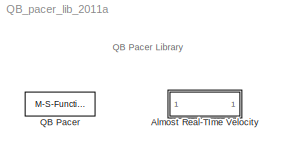
MODEL QB_pacer_lib_2011a
KIND library
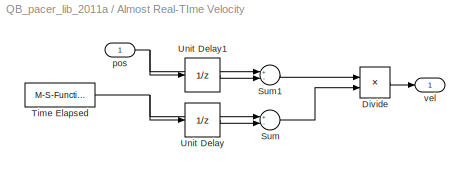
BLOCK [SubSystem] Almost Real-TIme Velocity
  FunctionWithSeparateData = off
  MaskDescription = Uses Real-Time Pacer to compute an almost real-time velocity.\n\nPOS = position to use as reference\nVEL = velocity (pos unit/second)
  MaskHideContents = off
  MaskIconFrame = on
  MaskIconOpaque = on
  MaskIconRotate = none
  MaskIconUnits = autoscale
  MaskPortRotate = default
  MaskType = Almost Real-Time Velocity
  MinAlgLoopOccurrences = off
  Opaque = off
  Ports = [1, 1]
  PropExecContextOutsideSubsystem = off
  RTWSystemCode = Auto
  RequestExecContextInheritance = off
  SID = 5
  Variant = off
BLOCK [Product] Almost Real-TIme Velocity/Divide
  InputSameDT = off
  Inputs = */
  OutDataTypeStr = Inherit: Inherit via internal rule
  Ports = [2, 1]
  RndMeth = Floor
  SID = 7
  SaturateOnIntegerOverflow = off
BLOCK [Sum] Almost Real-TIme Velocity/Sum
  IconShape = round
  InputSameDT = off
  Inputs = +-|
  OutDataTypeStr = Inherit: Inherit via internal rule
  Ports = [2, 1]
  SID = 8
  SaturateOnIntegerOverflow = off
BLOCK [Sum] Almost Real-TIme Velocity/Sum1
  IconShape = round
  InputSameDT = off
  Inputs = +-|
  OutDataTypeStr = Inherit: Inherit via internal rule
  Ports = [2, 1]
  SID = 9
  SaturateOnIntegerOverflow = off
BLOCK [M-S-Function] Almost Real-TIme Velocity/Time Elapsed
  AncestorBlock = realtime_pacer_lib/Real-Time Pacer
  FunctionName = msfun_realtime_elapsed
  MaskDisplay = port_label('output',1,'time');
  MaskIconFrame = on
  MaskIconOpaque = on
  MaskIconRotate = none
  MaskIconUnits = normalized
  MaskPortRotate = default
  MaskType = Time Elapsed
  Ports = [0, 1]
  SID = 10
BLOCK [UnitDelay] Almost Real-TIme Velocity/Unit Delay
  InputProcessing = Elements as channels (sample based)
  SID = 11
  SampleTime = -1
BLOCK [UnitDelay] Almost Real-TIme Velocity/Unit Delay1
  InputProcessing = Elements as channels (sample based)
  SID = 12
  SampleTime = -1
BLOCK [Inport] Almost Real-TIme Velocity/pos
  IconDisplay = Port number
  SID = 6
BLOCK [Outport] Almost Real-TIme Velocity/vel
  IconDisplay = Port number
  SID = 13
BLOCK [M-S-Function] QB Pacer
  AncestorBlock = realtime_pacer_lib/Real-Time Pacer
  FunctionName = msfun_realtime_pacer
  MaskDescription = Slow down a simulation to track real (i.e., wall clock) elapsed time. \n\n\"Speedup\" specifies the ratio between simulation time and real time \n Speedup = N => N sec. of simulation time per sec. of real time\n Speedup can be fractional (e.g., 0.5, 1.3). \n Speedup = inf => allow simulation to run at full speed\n\nClick on the Help button for details.\n
  MaskDisplay = %fprintf('QB Pacer\\nSpeedup = %g', simTimePerRealTime)\nport_label('output',1,'time');
  MaskEnableString = on
  MaskHelp = web('realtime_pacer_help.html', '-helpbrowser')
  MaskIconFrame = on
  MaskIconOpaque = on
  MaskIconRotate = none
  MaskIconUnits = normalized
  MaskPortRotate = default
  MaskPromptString = Speedup (Simulation Time / Real Time):
  MaskStyleString = edit
  MaskToolTipString = on
  MaskTunableValueString = on
  MaskType = RealTime_Pacer
  MaskValueString = 1
  MaskVariables = simTimePerRealTime=@1;
  MaskVisibilityString = on
  Parameters = simTimePerRealTime
  Ports = [0, 1]
  SID = 4
ANNOTATION (root): QB Pacer Library
LINE Almost Real-TIme Velocity/Divide:1 -> Almost Real-TIme Velocity/vel:1
LINE Almost Real-TIme Velocity/Sum1:1 -> Almost Real-TIme Velocity/Divide:1
LINE Almost Real-TIme Velocity/Sum:1 -> Almost Real-TIme Velocity/Divide:2
NET Almost Real-TIme Velocity/Time Elapsed:1 -> Almost Real-TIme Velocity/Sum:1, Almost Real-TIme Velocity/Unit Delay:1
LINE Almost Real-TIme Velocity/Unit Delay1:1 -> Almost Real-TIme Velocity/Sum1:2
LINE Almost Real-TIme Velocity/Unit Delay:1 -> Almost Real-TIme Velocity/Sum:2
NET Almost Real-TIme Velocity/pos:1 -> Almost Real-TIme Velocity/Sum1:1, Almost Real-TIme Velocity/Unit Delay1:1
note: NET lines group one-source signal fan-out (src -> all destinations, sorted); 1:1 wires keep LINE
